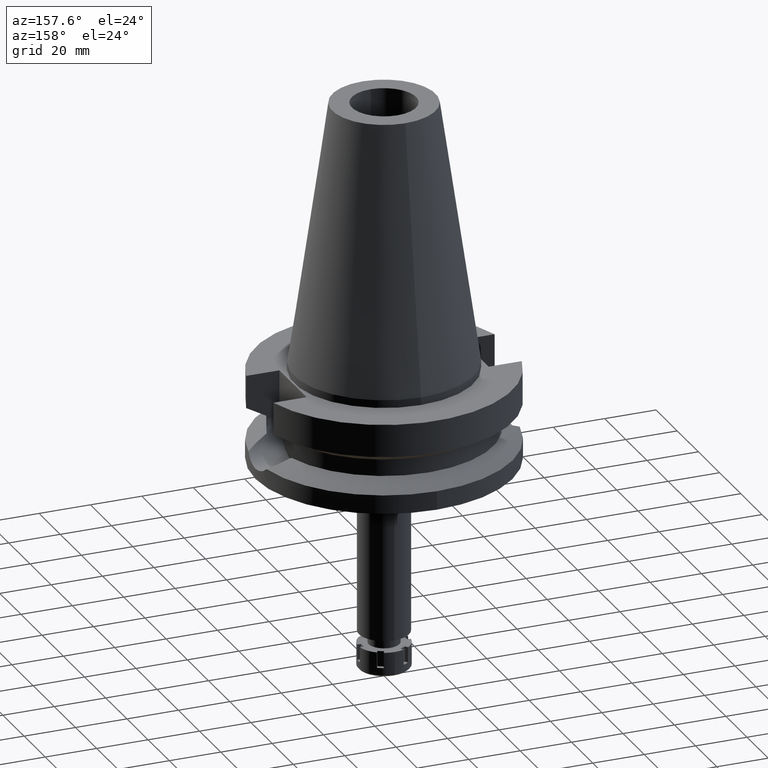
[diagram: clean part render]
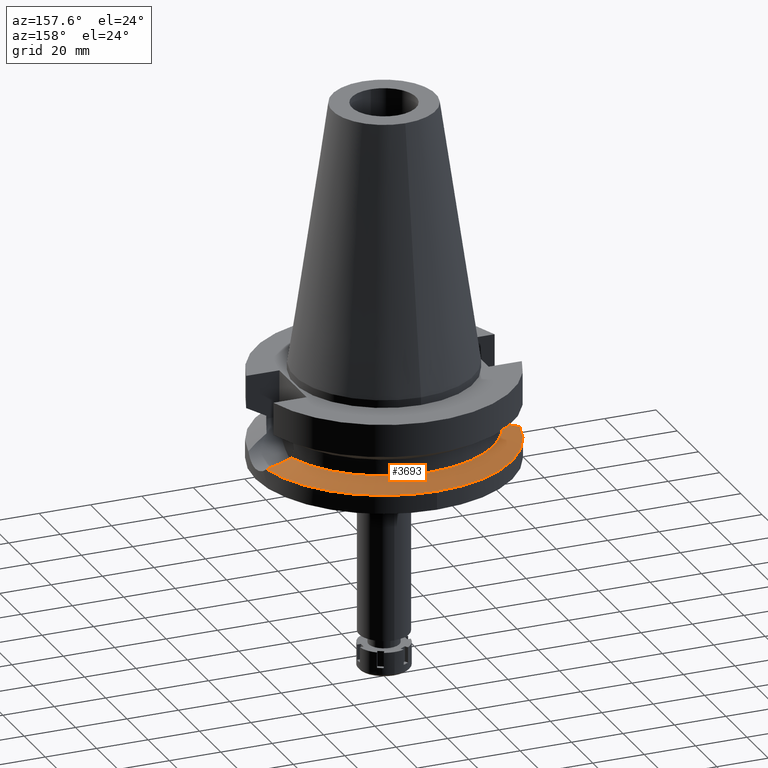
[diagram: same view with one face highlighted and labeled with its STEP entity id]
A machine part, auxiliary view. The second image highlights one B-rep face of the part: STEP entity #3693.
In plain terms, the highlighted conical surface has half-angle 60 deg.
Its self-contained STEP definition (entity closure, byte-faithful):
#82 = VERTEX_POINT ( 'NONE', #1111 ) ;
#97 = EDGE_CURVE ( 'NONE', #2498, #82, #845, .T. ) ;
#168 = B_SPLINE_CURVE_WITH_KNOTS ( 'NONE', 3,
 ( #516, #2197, #3630, #205, #3314, #2746, #1646, #1923, #3060, #3686, #3082, #1338, #2462, #2823, #254 ),
 .UNSPECIFIED., .F., .F.,
 ( 4, 2, 2, 1, 1, 1, 2, 2, 4 ),
 ( 0.0000000000000000000, 0.2500000000000123790, 0.3750000000000183187, 0.4375000000000222600, 0.4687500000000239808, 0.4843750000000248690, 0.4921875000000252021, 0.5000000000000255351, 1.000000000000000000 ),
 .UNSPECIFIED. ) ;
#205 = CARTESIAN_POINT ( 'NONE',  ( -43.71351627713067955, 10.94483574872132614, -27.88698275050471054 ) ) ;
#254 = CARTESIAN_POINT ( 'NONE',  ( -49.26250064874000145, 8.556052234130000045, -30.73730776426999967 ) ) ;
#256 = B_SPLINE_CURVE_WITH_KNOTS ( 'NONE', 3,
 ( #1215, #1236, #2065, #3224, #656, #1806, #901, #1729, #301, #2373, #2008, #3149, #3207, #2026, #2867, #598 ),
 .UNSPECIFIED., .F., .F.,
 ( 4, 2, 2, 1, 1, 1, 1, 2, 2, 4 ),
 ( 0.0000000000000000000, 0.2499999999999733546, 0.3749999999999591438, 0.4374999999999528710, 0.4687499999999489297, 0.4843749999999477640, 0.4921874999999479861, 0.4960937499999479861, 0.4999999999999480416, 1.000000000000000000 ),
 .UNSPECIFIED. ) ;
#301 = CARTESIAN_POINT ( 'NONE',  ( 45.44735433290657056, 10.34016909767419179, -28.77921800161297838 ) ) ;
#310 = CARTESIAN_POINT ( 'NONE',  ( -40.85052569294000335, 11.72538061688000077, -26.40718074535000426 ) ) ;
#332 = EDGE_CURVE ( 'NONE', #3318, #1650, #3655, .T. ) ;
#500 = CARTESIAN_POINT ( 'NONE',  ( 0.0000000000000000000, 0.0000000000000000000, -30.73730776426999967 ) ) ;
#516 = CARTESIAN_POINT ( 'NONE',  ( -40.85052569294000335, 11.72538061688000077, -26.40718074535000426 ) ) ;
#563 = CARTESIAN_POINT ( 'NONE',  ( 0.0000000000000000000, 0.0000000000000000000, -30.73730776426999967 ) ) ;
#598 = CARTESIAN_POINT ( 'NONE',  ( 40.85052569294000335, 11.72538061688000077, -26.40718074535000426 ) ) ;
#656 = CARTESIAN_POINT ( 'NONE',  ( 46.73490844438281044, 9.820097952442347733, -29.44115876246852181 ) ) ;
#734 = DIRECTION ( 'NONE',  ( 0.0000000000000000000, -1.000000000000000000, 0.0000000000000000000 ) ) ;
#764 = DIRECTION ( 'NONE',  ( 0.0000000000000000000, 0.0000000000000000000, -1.000000000000000000 ) ) ;
#845 = CIRCLE ( 'NONE', #1447, 50.00000000000000000 ) ;
#866 = CONICAL_SURFACE ( 'NONE', #3376, 46.25000000000000000, 1.047197551196400456 ) ;
#901 = CARTESIAN_POINT ( 'NONE',  ( 45.93314006642722092, 10.15221397019499250, -29.02906863876473409 ) ) ;
#916 = AXIS2_PLACEMENT_3D ( 'NONE', #500, #1039, #1960 ) ;
#1039 = DIRECTION ( 'NONE',  ( 0.0000000000000000000, 0.0000000000000000000, -1.000000000000000000 ) ) ;
#1081 = CARTESIAN_POINT ( 'NONE',  ( 40.85052569294000335, 11.72538061688000077, -26.40718074535000426 ) ) ;
#1097 = EDGE_CURVE ( 'NONE', #82, #2697, #3493, .T. ) ;
#1111 = CARTESIAN_POINT ( 'NONE',  ( 0.0000000000000000000, 50.00000000000000000, -30.73730776426999967 ) ) ;
#1118 = ORIENTED_EDGE ( 'NONE', *, *, #1097, .F. ) ;
#1130 = EDGE_CURVE ( 'NONE', #1650, #2498, #168, .T. ) ;
#1215 = CARTESIAN_POINT ( 'NONE',  ( 49.26250064874000145, 8.556052234130000045, -30.73730776426999967 ) ) ;
#1233 = CARTESIAN_POINT ( 'NONE',  ( 0.0000000000000000000, 0.0000000000000000000, -26.40718074535000426 ) ) ;
#1236 = CARTESIAN_POINT ( 'NONE',  ( 48.69047850290822055, 8.884316265751099451, -30.44435334263351223 ) ) ;
#1338 = CARTESIAN_POINT ( 'NONE',  ( -45.47590280650401695, 10.32899708410670492, -28.79424762034881979 ) ) ;
#1447 = AXIS2_PLACEMENT_3D ( 'NONE', #563, #764, #1629 ) ;
#1543 = DIRECTION ( 'NONE',  ( 0.0000000000000000000, 0.0000000000000000000, 1.000000000000000000 ) ) ;
#1582 = DIRECTION ( 'NONE',  ( 0.0000000000000000000, 0.0000000000000000000, -1.000000000000000000 ) ) ;
#1617 = ORIENTED_EDGE ( 'NONE', *, *, #97, .F. ) ;
#1629 = DIRECTION ( 'NONE',  ( -0.9852500129747439050, 0.1711210446826074982, 0.0000000000000000000 ) ) ;
#1646 = CARTESIAN_POINT ( 'NONE',  ( -44.89787558118864297, 10.54355668883466635, -28.49690257440500929 ) ) ;
#1650 = VERTEX_POINT ( 'NONE', #310 ) ;
#1729 = CARTESIAN_POINT ( 'NONE',  ( 45.61053032543964747, 10.27793765900630163, -28.86315270907437736 ) ) ;
#1806 = CARTESIAN_POINT ( 'NONE',  ( 46.20324742599608214, 10.04236694129538066, -29.16792682502047285 ) ) ;
#1923 = CARTESIAN_POINT ( 'NONE',  ( -45.20076719143565214, 10.43248576042626752, -28.65272721142961743 ) ) ;
#1960 = DIRECTION ( 'NONE',  ( 0.0000000000000000000, 1.000000000000000000, 0.0000000000000000000 ) ) ;
#2008 = CARTESIAN_POINT ( 'NONE',  ( 45.33003155597393175, 10.38435624674453450, -28.71886394406518050 ) ) ;
#2026 = CARTESIAN_POINT ( 'NONE',  ( 43.99276756884930961, 10.88338489623259342, -28.03089659096281849 ) ) ;
#2065 = CARTESIAN_POINT ( 'NONE',  ( 48.07283661973739441, 9.204940229188441236, -30.12791399234582457 ) ) ;
#2197 = CARTESIAN_POINT ( 'NONE',  ( -41.72638711975240255, 11.52198068530683450, -26.86083484831390678 ) ) ;
#2214 = CARTESIAN_POINT ( 'NONE',  ( 49.26250064874000145, 8.556052234130000045, -30.73730776426999967 ) ) ;
#2279 = EDGE_LOOP ( 'NONE', ( #2639, #2548, #1118, #1617, #3429 ) ) ;
#2373 = CARTESIAN_POINT ( 'NONE',  ( 45.36529855613019180, 10.37112438074890441, -28.73700672778409171 ) ) ;
#2389 = EDGE_CURVE ( 'NONE', #2697, #3318, #256, .T. ) ;
#2462 = CARTESIAN_POINT ( 'NONE',  ( -46.92008699939869842, 9.778003016232187150, -29.53703585764641204 ) ) ;
#2490 = DIRECTION ( 'NONE',  ( 0.0000000000000000000, 1.000000000000000000, 0.0000000000000000000 ) ) ;
#2498 = VERTEX_POINT ( 'NONE', #3031 ) ;
#2548 = ORIENTED_EDGE ( 'NONE', *, *, #2389, .F. ) ;
#2639 = ORIENTED_EDGE ( 'NONE', *, *, #332, .F. ) ;
#2697 = VERTEX_POINT ( 'NONE', #2214 ) ;
#2746 = CARTESIAN_POINT ( 'NONE',  ( -44.63113420220008010, 10.63750160269961142, -28.35961762373980832 ) ) ;
#2823 = CARTESIAN_POINT ( 'NONE',  ( -48.17488020735993359, 9.180200570977763874, -30.18029573302874269 ) ) ;
#2867 = CARTESIAN_POINT ( 'NONE',  ( 42.51529915793576464, 11.33877287449361404, -27.26945334895615503 ) ) ;
#3031 = CARTESIAN_POINT ( 'NONE',  ( -49.26250064874000145, 8.556052234130000045, -30.73730776426999967 ) ) ;
#3060 = CARTESIAN_POINT ( 'NONE',  ( -45.35013633024925639, 10.37661089731952480, -28.72955992204374454 ) ) ;
#3082 = CARTESIAN_POINT ( 'NONE',  ( -45.45598801684781165, 10.33656880532880606, -28.78400470104165265 ) ) ;
#3149 = CARTESIAN_POINT ( 'NONE',  ( 45.30649794727406743, 10.39316974929979587, -28.70675715008175999 ) ) ;
#3207 = CARTESIAN_POINT ( 'NONE',  ( 45.29301032690585060, 10.39821058152996081, -28.69981839095354204 ) ) ;
#3224 = CARTESIAN_POINT ( 'NONE',  ( 47.07794418897253763, 9.668486703874398458, -29.61733168868602561 ) ) ;
#3245 = AXIS2_PLACEMENT_3D ( 'NONE', #1233, #1543, #2490 ) ;
#3303 = FACE_OUTER_BOUND ( 'NONE', #2279, .T. ) ;
#3314 = CARTESIAN_POINT ( 'NONE',  ( -44.08815811252041073, 10.82345201905429022, -28.08004277787187775 ) ) ;
#3318 = VERTEX_POINT ( 'NONE', #1081 ) ;
#3376 = AXIS2_PLACEMENT_3D ( 'NONE', #3603, #1582, #734 ) ;
#3429 = ORIENTED_EDGE ( 'NONE', *, *, #1130, .F. ) ;
#3493 = CIRCLE ( 'NONE', #916, 50.00000000000000000 ) ;
#3603 = CARTESIAN_POINT ( 'NONE',  ( 0.0000000000000000000, 0.0000000000000000000, -28.57224425480999841 ) ) ;
#3630 = CARTESIAN_POINT ( 'NONE',  ( -42.55161744415163128, 11.29904984060959094, -27.28754326157991272 ) ) ;
#3655 = CIRCLE ( 'NONE', #3245, 42.50000000000000000 ) ;
#3686 = CARTESIAN_POINT ( 'NONE',  ( -45.41370667553153595, 10.35259475033470800, -28.76225750866095154 ) ) ;
#3693 = ADVANCED_FACE ( 'NONE', ( #3303 ), #866, .T. ) ;